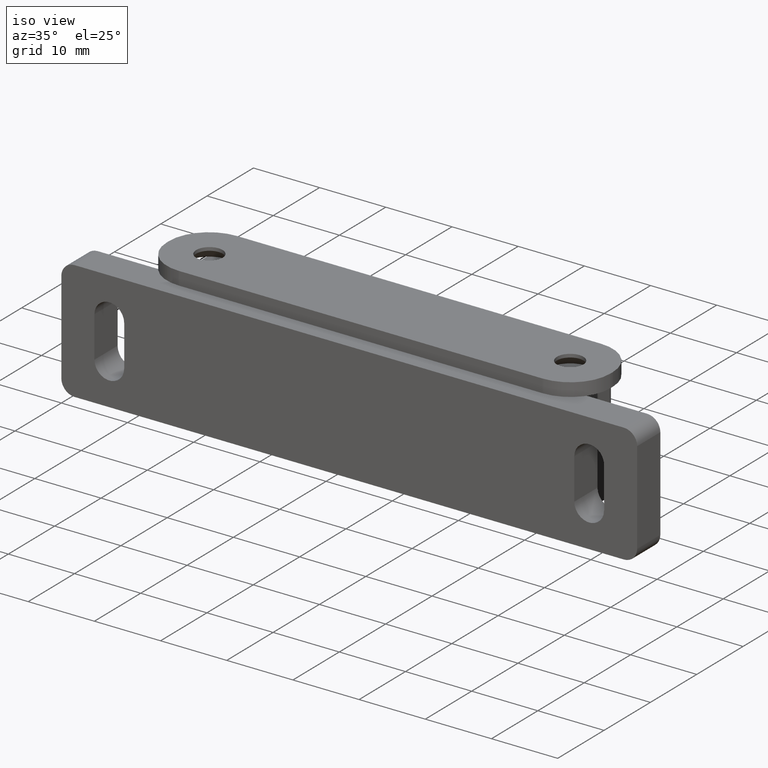
[diagram: clean part render]
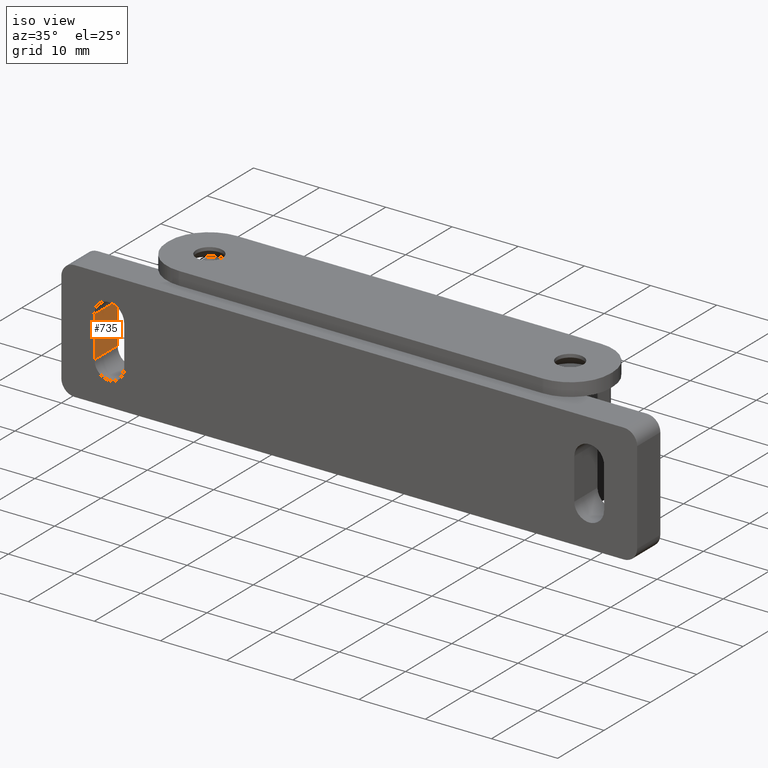
[diagram: same view with one face highlighted and labeled with its STEP entity id]
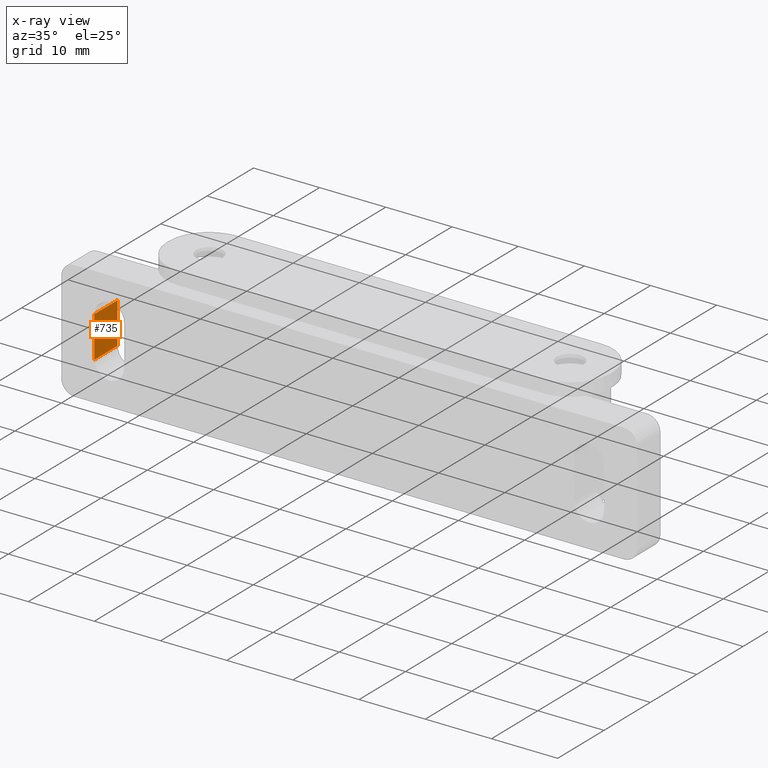
[diagram: x-ray of the same camera — body ghosted, the highlighted face saturated]
A machine part, iso view. The second image highlights one B-rep face of the part: STEP entity #735.
The next image is the same camera in x-ray: the body ghosted, the highlighted face saturated — about 0% of this face is hidden behind the body in this view.
In plain terms, the highlighted planar face has unit normal (-1, 0, 0).
Its self-contained STEP definition (entity closure, byte-faithful):
#51=PLANE('',#802);
#83=FACE_OUTER_BOUND('',#125,.T.);
#125=EDGE_LOOP('',(#607,#608,#609,#610));
#166=LINE('',#1115,#230);
#194=LINE('',#1199,#258);
#198=LINE('',#1208,#262);
#199=LINE('',#1210,#263);
#230=VECTOR('',#877,6.2);
#258=VECTOR('',#967,5.);
#262=VECTOR('',#977,5.);
#263=VECTOR('',#980,6.2);
#336=VERTEX_POINT('',#1108);
#339=VERTEX_POINT('',#1113);
#363=VERTEX_POINT('',#1196);
#366=VERTEX_POINT('',#1206);
#411=EDGE_CURVE('',#339,#336,#166,.T.);
#453=EDGE_CURVE('',#339,#363,#194,.T.);
#458=EDGE_CURVE('',#336,#366,#198,.T.);
#459=EDGE_CURVE('',#366,#363,#199,.T.);
#607=ORIENTED_EDGE('',*,*,#459,.F.);
#608=ORIENTED_EDGE('',*,*,#458,.F.);
#609=ORIENTED_EDGE('',*,*,#411,.F.);
#610=ORIENTED_EDGE('',*,*,#453,.T.);
#735=ADVANCED_FACE('',(#83),#51,.F.);
#802=AXIS2_PLACEMENT_3D('',#1209,#978,#979);
#877=DIRECTION('',(0.,0.,-1.));
#967=DIRECTION('',(0.,-1.,0.));
#977=DIRECTION('',(0.,-1.,0.));
#978=DIRECTION('center_axis',(-1.,0.,0.));
#979=DIRECTION('ref_axis',(0.,0.,-1.));
#980=DIRECTION('',(0.,0.,1.));
#1108=CARTESIAN_POINT('',(5.,5.,5.89));
#1113=CARTESIAN_POINT('',(5.,5.,12.09));
#1115=CARTESIAN_POINT('',(5.,5.,6.045));
#1196=CARTESIAN_POINT('',(5.,0.,12.09));
#1199=CARTESIAN_POINT('',(5.,5.,12.09));
#1206=CARTESIAN_POINT('',(5.,0.,5.89));
#1208=CARTESIAN_POINT('',(5.,5.,5.89));
#1209=CARTESIAN_POINT('Origin',(5.,5.,12.09));
#1210=CARTESIAN_POINT('',(5.,0.,6.045));